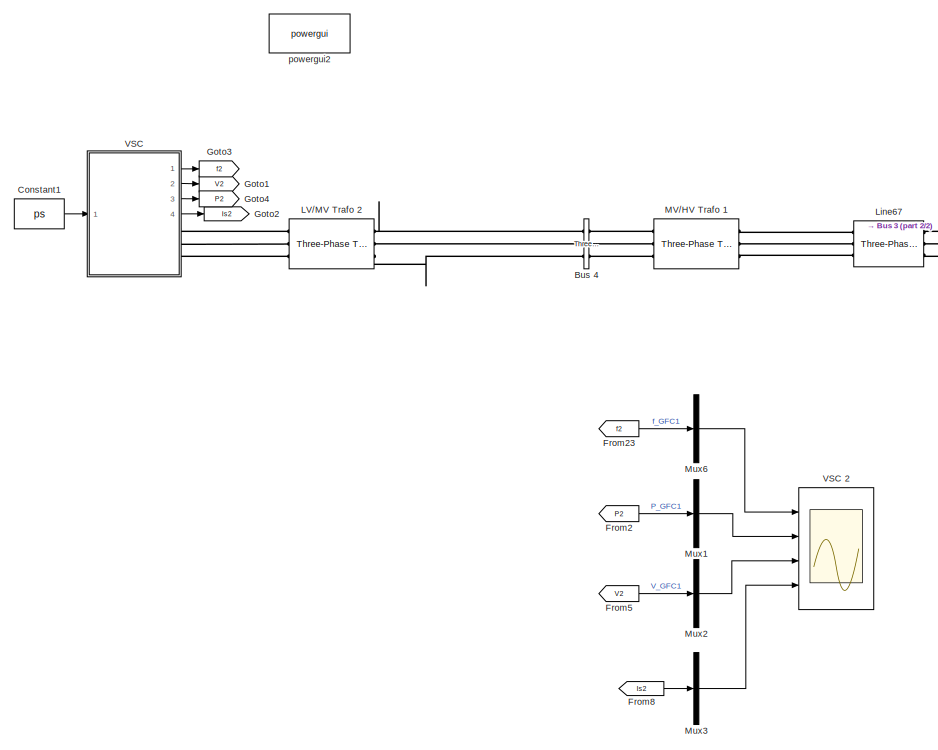
[diagram: root canvas - part 1/2, left side, full height]
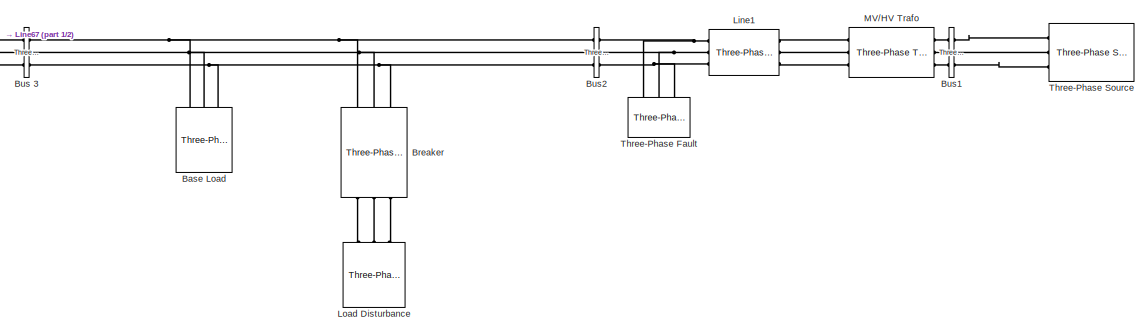
[diagram: root canvas - part 2/2, middle right region]
MODEL slx_628d7ac328af
KIND model
CONFIG AbsTol = auto
CONFIG EnableMultiTasking = off
CONFIG FixedStep = auto
CONFIG MaxStep = auto
CONFIG MinStep = auto
CONFIG RelTol = 1e-3
CONFIG SampleTimeConstraint = Unconstrained
CONFIG Solver = ode23tb
CONFIG SolverName = ode23tb
CONFIG StartTime = 0.0
CONFIG StopTime = Tend
BLOCK [Reference] Base Load   REF=powerlib/Elements/Three-Phase
Parallel RLC Load
  AttributesFormatString = \n
  Ports = [0, 0, 0, 0, 0, 3]
  SourceBlock = powerlib/Elements/Three-Phase\nParallel RLC Load
  SourceProductBaseCode = PS
  SourceProductName = Simscape Electrical
  SourceType = Three-Phase Parallel RLC Load
BLOCK [Reference] Breaker  REF=powerlib/Elements/Three-Phase Breaker
  Ports = [0, 0, 0, 0, 0, 3, 3]
  SourceBlock = powerlib/Elements/Three-Phase Breaker
  SourceProductBaseCode = PS
  SourceProductName = Simscape Electrical
  SourceType = Three-Phase Breaker
BLOCK [Reference] Bus 3  REF=powerlib/Measurements/Three-Phase
V-I Measurement
  Ports = [0, 0, 0, 0, 0, 3, 3]
  SourceBlock = powerlib/Measurements/Three-Phase\nV-I Measurement
  SourceProductBaseCode = PS
  SourceProductName = Simscape Electrical
  SourceType = Three-Phase VI Measurement
BLOCK [Reference] Bus 4  REF=powerlib/Measurements/Three-Phase
V-I Measurement
  Ports = [0, 0, 0, 0, 0, 3, 3]
  SourceBlock = powerlib/Measurements/Three-Phase\nV-I Measurement
  SourceProductBaseCode = PS
  SourceProductName = Simscape Electrical
  SourceType = Three-Phase VI Measurement
BLOCK [Reference] Bus1  REF=powerlib/Measurements/Three-Phase
V-I Measurement
  Ports = [0, 0, 0, 0, 0, 3, 3]
  SourceBlock = powerlib/Measurements/Three-Phase\nV-I Measurement
  SourceProductBaseCode = PS
  SourceProductName = Simscape Electrical
  SourceType = Three-Phase VI Measurement
BLOCK [Reference] Bus2   REF=powerlib/Measurements/Three-Phase
V-I Measurement
  Ports = [0, 0, 0, 0, 0, 3, 3]
  SourceBlock = powerlib/Measurements/Three-Phase\nV-I Measurement
  SourceProductBaseCode = PS
  SourceProductName = Simscape Electrical
  SourceType = Three-Phase VI Measurement
BLOCK [Constant] Constant1
  Value = ps
BLOCK [From] From2
  GotoTag = P2
BLOCK [From] From23
  GotoTag = f2
BLOCK [From] From5
  GotoTag = V2
BLOCK [From] From8
  GotoTag = Is2
BLOCK [Goto] Goto1
  GotoTag = V2
BLOCK [Goto] Goto2
  GotoTag = Is2
BLOCK [Goto] Goto3
  GotoTag = f2
BLOCK [Goto] Goto4
  GotoTag = P2
BLOCK [Reference] LV//MV Trafo 2  REF=powerlib/Elements/Three-Phase
Transformer
(Two Windings)
  AttributesFormatString = \n
  Ports = [0, 0, 0, 0, 0, 3, 3]
  SourceBlock = powerlib/Elements/Three-Phase\nTransformer\n(Two Windings)
  SourceProductBaseCode = PS
  SourceProductName = Simscape Electrical
  SourceType = Three-Phase Transformer (Two Windings)
BLOCK [Reference] Line1  REF=powerlib/Elements/Three-Phase
Series RLC Branch
  AttributesFormatString = \n
  Ports = [0, 0, 0, 0, 0, 3, 3]
  SourceBlock = powerlib/Elements/Three-Phase\nSeries RLC Branch
  SourceProductBaseCode = PS
  SourceProductName = Simscape Electrical
  SourceType = Three-Phase Series RLC Branch
BLOCK [Reference] Line67  REF=powerlib/Elements/Three-Phase
Series RLC Branch
  AttributesFormatString = \n
  Ports = [0, 0, 0, 0, 0, 3, 3]
  SourceBlock = powerlib/Elements/Three-Phase\nSeries RLC Branch
  SourceProductBaseCode = PS
  SourceProductName = Simscape Electrical
  SourceType = Three-Phase Series RLC Branch
BLOCK [Reference] Load Disturbance  REF=powerlib/Elements/Three-Phase
Parallel RLC Load
  AttributesFormatString = \n
  Ports = [0, 0, 0, 0, 0, 3]
  SourceBlock = powerlib/Elements/Three-Phase\nParallel RLC Load
  SourceProductBaseCode = PS
  SourceProductName = Simscape Electrical
  SourceType = Three-Phase Parallel RLC Load
BLOCK [Reference] MV//HV Trafo   REF=powerlib/Elements/Three-Phase
Transformer
(Two Windings)
  AttributesFormatString = \n
  Ports = [0, 0, 0, 0, 0, 3, 3]
  SourceBlock = powerlib/Elements/Three-Phase\nTransformer\n(Two Windings)
  SourceProductBaseCode = PS
  SourceProductName = Simscape Electrical
  SourceType = Three-Phase Transformer (Two Windings)
BLOCK [Reference] MV//HV Trafo 1  REF=powerlib/Elements/Three-Phase
Transformer
(Two Windings)
  AttributesFormatString = \n
  Ports = [0, 0, 0, 0, 0, 3, 3]
  SourceBlock = powerlib/Elements/Three-Phase\nTransformer\n(Two Windings)
  SourceProductBaseCode = PS
  SourceProductName = Simscape Electrical
  SourceType = Three-Phase Transformer (Two Windings)
BLOCK [Mux] Mux1
  DisplayOption = bar
  Inputs = 1
  Ports = [1, 1]
BLOCK [Mux] Mux2
  DisplayOption = bar
  Inputs = 1
  Ports = [1, 1]
BLOCK [Mux] Mux3
  DisplayOption = bar
  Inputs = 1
  Ports = [1, 1]
BLOCK [Mux] Mux6
  DisplayOption = bar
  Inputs = 1
  Ports = [1, 1]
BLOCK [Reference] Three-Phase Fault  REF=powerlib/Elements/Three-Phase Fault
  Ports = [0, 0, 0, 0, 0, 3]
  SourceBlock = powerlib/Elements/Three-Phase Fault
  SourceProductBaseCode = PS
  SourceProductName = Simscape Electrical
  SourceType = Three-Phase Fault
BLOCK [Reference] Three-Phase Source  REF=powerlib/Electrical
Sources/Three-Phase Source
  Ports = [0, 0, 0, 0, 0, 0, 3]
  SourceBlock = powerlib/Electrical\nSources/Three-Phase Source
  SourceProductBaseCode = PS
  SourceProductName = Simscape Electrical
  SourceType = Three-Phase Source
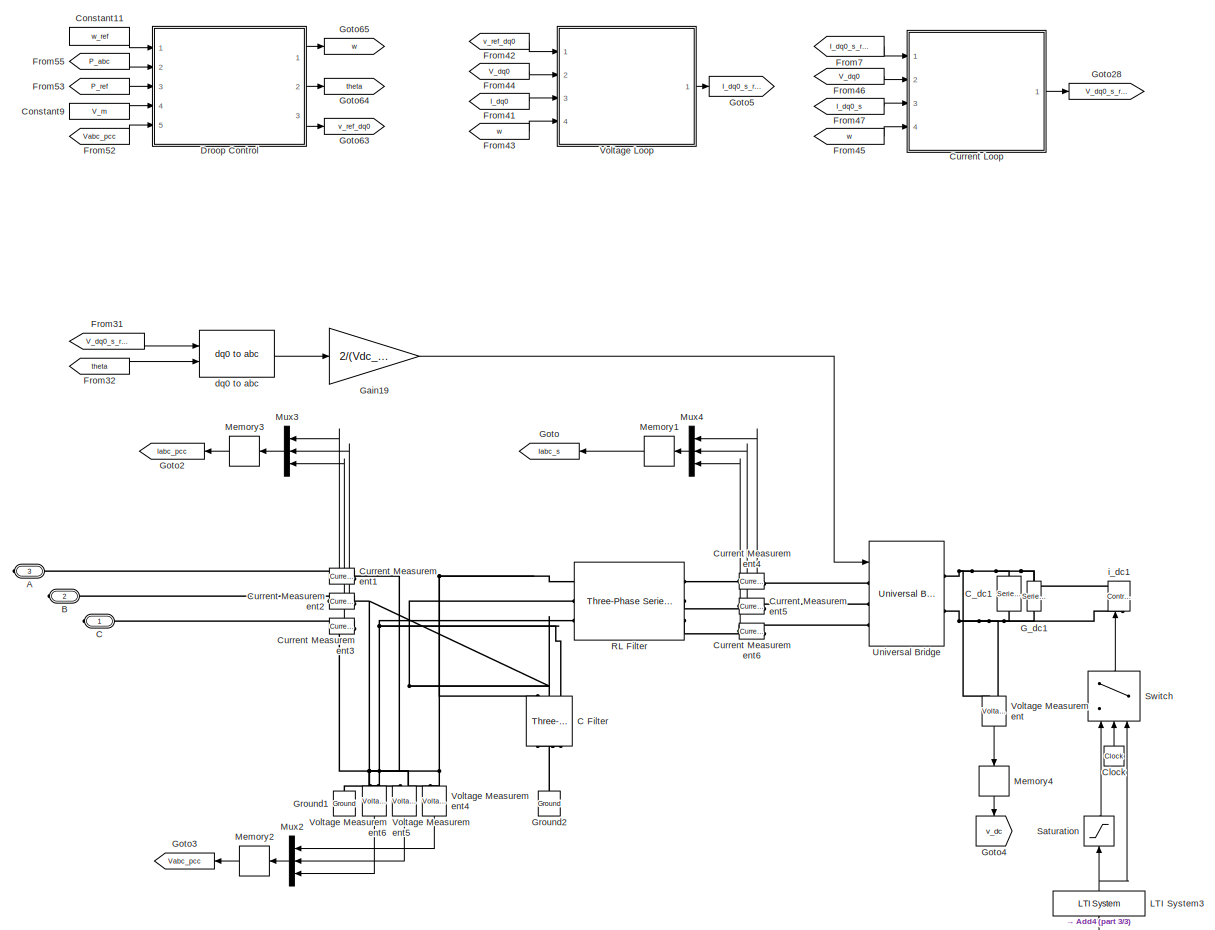
[diagram: VSC - part 1/3, middle right region]
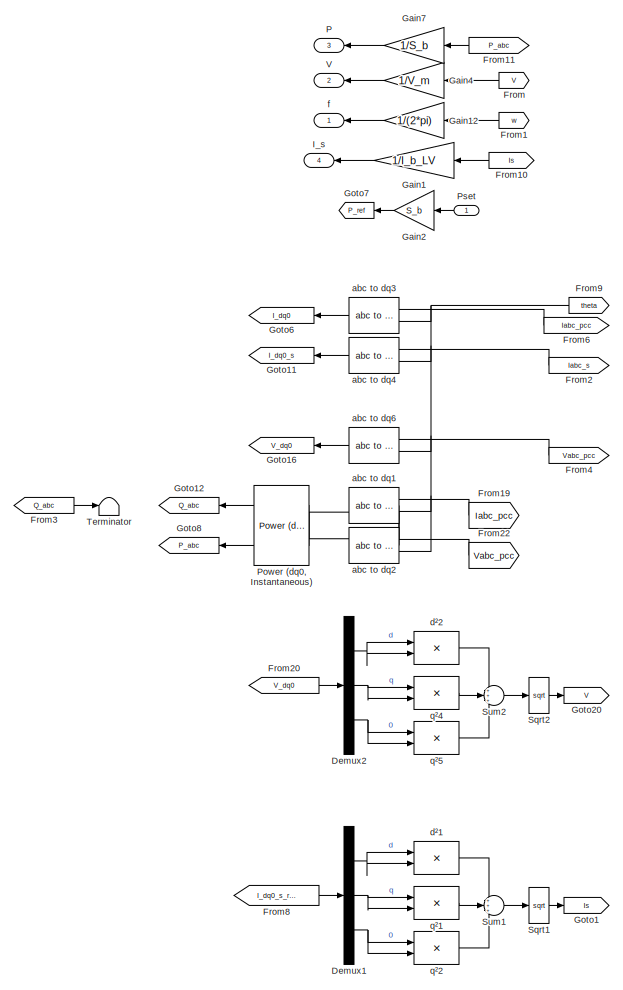
[diagram: VSC - part 2/3, middle left region]
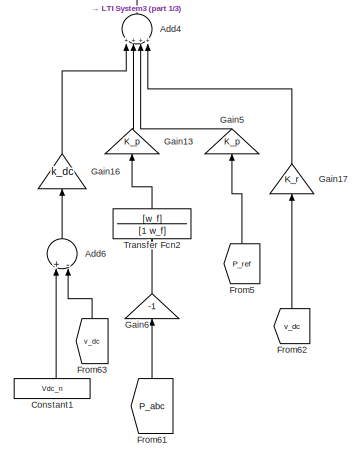
[diagram: VSC - part 3/3, bottom right region]
BLOCK [SubSystem] VSC
  Ports = [1, 4, 0, 0, 0, 0, 3]
  RequestExecContextInheritance = off
BLOCK [Scope] VSC 2 
  Floating = off
  NumInputPorts = 4
  Ports = [4]
  ScopeSpecificationString = Simulink.scopes.TimeScopeBlockCfg('CurrentConfiguration', extmgr.ConfigurationSet(extmgr.Configuration('Core','General UI',true),extmgr.Configuration('Core','Source UI',true),extmgr.Configuration('Sources','WiredSimulink',true,'DataLoggingVariableName','ScopeData1','DataLogging',true,'DataLoggingSaveFormat','StructureWithTime'),extmgr.Configuration('Visuals','Time Domain',true,'SerializedDisplays'...<+3536ch>
BLOCK [PMIOPort] VSC/A
  Port = 3
  Side = Right
BLOCK [Sum] VSC/Add4
  InputSameDT = off
  Inputs = ++++
  OutDataTypeStr = Inherit: Inherit via internal rule
  Ports = [4, 1]
  SaturateOnIntegerOverflow = off
BLOCK [Sum] VSC/Add6
  InputSameDT = off
  Inputs = +-
  OutDataTypeStr = Inherit: Inherit via internal rule
  Ports = [2, 1]
  SaturateOnIntegerOverflow = off
BLOCK [PMIOPort] VSC/B
  Port = 2
  Side = Right
BLOCK [PMIOPort] VSC/C
  Side = Right
BLOCK [Reference] VSC/C Filter  REF=powerlib/Elements/Three-Phase
Parallel RLC Branch
  AttributesFormatString = \n
  Ports = [0, 0, 0, 0, 0, 3, 3]
  SourceBlock = powerlib/Elements/Three-Phase\nParallel RLC Branch
  SourceProductBaseCode = PS
  SourceProductName = Simscape Electrical
  SourceType = Three-Phase Parallel RLC Branch
BLOCK [Reference] VSC/C_dc1  REF=powerlib/Elements/Series RLC Branch
  Ports = [0, 0, 0, 0, 0, 1, 1]
  SourceBlock = powerlib/Elements/Series RLC Branch
  SourceProductBaseCode = PS
  SourceProductName = Simscape Electrical
  SourceType = Series RLC Branch
BLOCK [Clock] VSC/Clock
BLOCK [Constant] VSC/Constant1
  Value = Vdc_n
BLOCK [Constant] VSC/Constant11
  Value = w_ref
BLOCK [Constant] VSC/Constant9
  Value = V_m
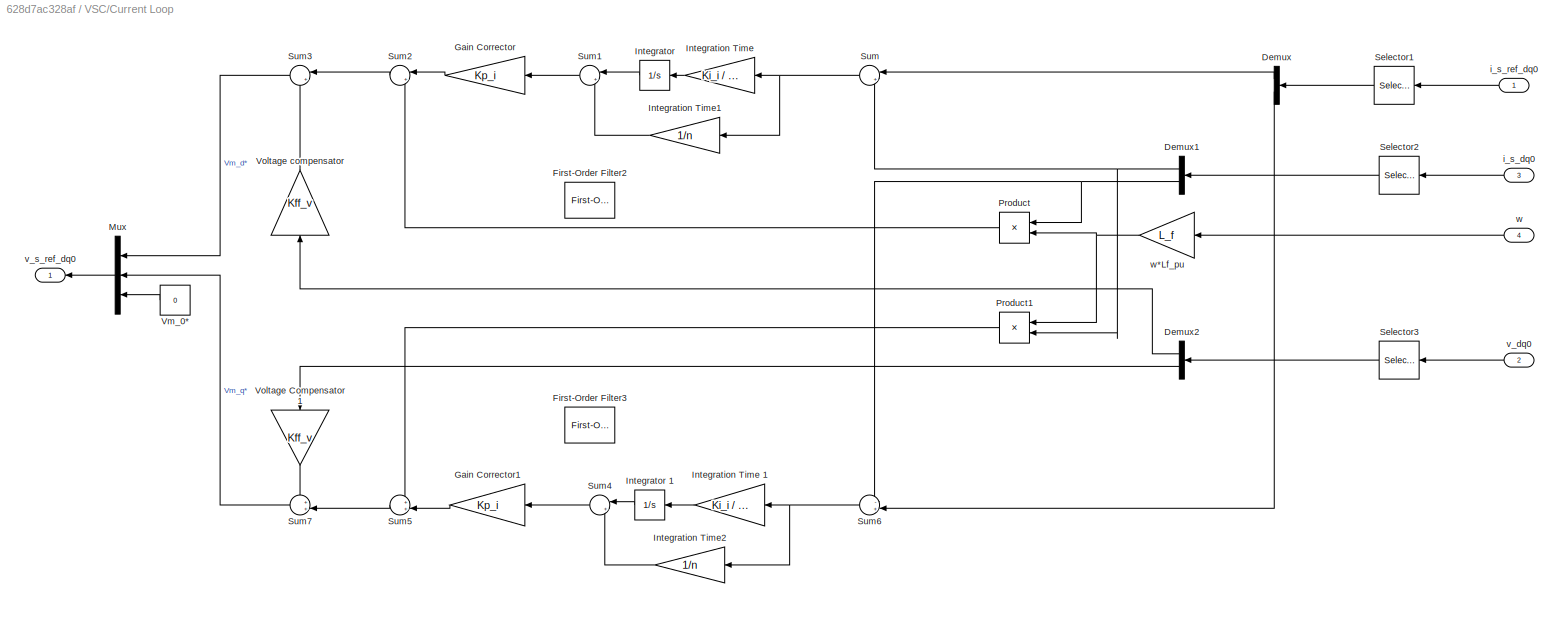
BLOCK [SubSystem] VSC/Current Loop
  Ports = [4, 1]
  RequestExecContextInheritance = off
BLOCK [Demux] VSC/Current Loop/Demux
  DisplayOption = bar
  Outputs = 2
  Ports = [1, 2]
BLOCK [Demux] VSC/Current Loop/Demux1
  DisplayOption = bar
  Outputs = 2
  Ports = [1, 2]
BLOCK [Demux] VSC/Current Loop/Demux2
  DisplayOption = bar
  Outputs = 2
  Ports = [1, 2]
BLOCK [Reference] VSC/Current Loop/First-Order Filter2  REF=powerlib_meascontrol/Filters/First-Order
Filter
  Commented = on
  Ports = [1, 1]
  SourceBlock = powerlib_meascontrol/Filters/First-Order\nFilter
  SourceProductBaseCode = PS
  SourceProductName = Simscape Electrical
  SourceType = First-Order Filter
BLOCK [Reference] VSC/Current Loop/First-Order Filter3  REF=powerlib_meascontrol/Filters/First-Order
Filter
  Commented = on
  Ports = [1, 1]
  SourceBlock = powerlib_meascontrol/Filters/First-Order\nFilter
  SourceProductBaseCode = PS
  SourceProductName = Simscape Electrical
  SourceType = First-Order Filter
BLOCK [Gain] VSC/Current Loop/Gain Corrector
  Gain = Kp_i
  OutDataTypeStr = Inherit: Inherit via internal rule
  ParamDataTypeStr = Inherit: Inherit via internal rule
  SaturateOnIntegerOverflow = off
BLOCK [Gain] VSC/Current Loop/Gain Corrector1
  Gain = Kp_i
  OutDataTypeStr = Inherit: Inherit via internal rule
  ParamDataTypeStr = Inherit: Inherit via internal rule
  SaturateOnIntegerOverflow = off
BLOCK [Gain] VSC/Current Loop/Integration Time
  Gain = Ki_i / Kp_i
  OutDataTypeStr = Inherit: Inherit via internal rule
  ParamDataTypeStr = Inherit: Inherit via internal rule
  SaturateOnIntegerOverflow = off
BLOCK [Gain] VSC/Current Loop/Integration Time 1
  Gain = Ki_i / Kp_i
  OutDataTypeStr = Inherit: Inherit via internal rule
  ParamDataTypeStr = Inherit: Inherit via internal rule
  SaturateOnIntegerOverflow = off
BLOCK [Gain] VSC/Current Loop/Integration Time1
  Gain = 1/n
  OutDataTypeStr = Inherit: Inherit via internal rule
  ParamDataTypeStr = Inherit: Inherit via internal rule
  SaturateOnIntegerOverflow = off
BLOCK [Gain] VSC/Current Loop/Integration Time2
  Gain = 1/n
  OutDataTypeStr = Inherit: Inherit via internal rule
  ParamDataTypeStr = Inherit: Inherit via internal rule
  SaturateOnIntegerOverflow = off
BLOCK [Integrator] VSC/Current Loop/Integrator
  InitialCondition = 0.0001
  Ports = [1, 1]
BLOCK [Integrator] VSC/Current Loop/Integrator 1
  Ports = [1, 1]
BLOCK [Mux] VSC/Current Loop/Mux
  DisplayOption = bar
  Inputs = 3
  Ports = [3, 1]
BLOCK [Product] VSC/Current Loop/Product
  InputSameDT = off
  OutDataTypeStr = Inherit: Inherit via internal rule
  Ports = [2, 1]
  SaturateOnIntegerOverflow = off
BLOCK [Product] VSC/Current Loop/Product1
  InputSameDT = off
  OutDataTypeStr = Inherit: Inherit via internal rule
  Ports = [2, 1]
  SaturateOnIntegerOverflow = off
BLOCK [Selector] VSC/Current Loop/Selector1
  IndexOptions = Index vector (dialog)
  Indices = [1 2]
  InputPortWidth = 3
  OutputSizes = 1
  Ports = [1, 1]
BLOCK [Selector] VSC/Current Loop/Selector2
  IndexOptions = Index vector (dialog)
  Indices = [1 2]
  InputPortWidth = 3
  OutputSizes = 1
  Ports = [1, 1]
BLOCK [Selector] VSC/Current Loop/Selector3
  IndexOptions = Index vector (dialog)
  Indices = [1 2]
  InputPortWidth = 3
  OutputSizes = 1
  Ports = [1, 1]
BLOCK [Sum] VSC/Current Loop/Sum
  IconShape = round
  InputSameDT = off
  Inputs = |+-
  OutDataTypeStr = Inherit: Inherit via internal rule
  Ports = [2, 1]
  SaturateOnIntegerOverflow = off
BLOCK [Sum] VSC/Current Loop/Sum1
  IconShape = round
  InputSameDT = off
  Inputs = |++
  OutDataTypeStr = Inherit: Inherit via internal rule
  Ports = [2, 1]
  SaturateOnIntegerOverflow = off
BLOCK [Sum] VSC/Current Loop/Sum2
  IconShape = round
  InputSameDT = off
  Inputs = |+-
  OutDataTypeStr = Inherit: Inherit via internal rule
  Ports = [2, 1]
  SaturateOnIntegerOverflow = off
BLOCK [Sum] VSC/Current Loop/Sum3
  IconShape = round
  InputSameDT = off
  Inputs = |++
  OutDataTypeStr = Inherit: Inherit via internal rule
  Ports = [2, 1]
  SaturateOnIntegerOverflow = off
BLOCK [Sum] VSC/Current Loop/Sum4
  IconShape = round
  InputSameDT = off
  Inputs = |++
  OutDataTypeStr = Inherit: Inherit via internal rule
  Ports = [2, 1]
  SaturateOnIntegerOverflow = off
BLOCK [Sum] VSC/Current Loop/Sum5
  IconShape = round
  InputSameDT = off
  Inputs = ++|
  OutDataTypeStr = Inherit: Inherit via internal rule
  Ports = [2, 1]
  SaturateOnIntegerOverflow = off
BLOCK [Sum] VSC/Current Loop/Sum6
  IconShape = round
  InputSameDT = off
  Inputs = -+|
  OutDataTypeStr = Inherit: Inherit via internal rule
  Ports = [2, 1]
  SaturateOnIntegerOverflow = off
BLOCK [Sum] VSC/Current Loop/Sum7
  IconShape = round
  InputSameDT = off
  Inputs = ++|
  OutDataTypeStr = Inherit: Inherit via internal rule
  Ports = [2, 1]
  SaturateOnIntegerOverflow = off
BLOCK [Constant] VSC/Current Loop/Vm_0*
  Value = 0
BLOCK [Gain] VSC/Current Loop/Voltage Compensator 1
  Gain = Kff_v
  OutDataTypeStr = Inherit: Inherit via internal rule
  ParamDataTypeStr = Inherit: Inherit via internal rule
  SaturateOnIntegerOverflow = off
BLOCK [Gain] VSC/Current Loop/Voltage compensator
  Gain = Kff_v
  OutDataTypeStr = Inherit: Inherit via internal rule
  ParamDataTypeStr = Inherit: Inherit via internal rule
  SaturateOnIntegerOverflow = off
BLOCK [Inport] VSC/Current Loop/i_s_dq0
  IconDisplay = Port number
  Port = 3
BLOCK [Inport] VSC/Current Loop/i_s_ref_dq0
  IconDisplay = Port number
BLOCK [Inport] VSC/Current Loop/v_dq0
  IconDisplay = Port number
  Port = 2
BLOCK [Outport] VSC/Current Loop/v_s_ref_dq0
  IconDisplay = Port number
  VectorParamsAs1DForOutWhenUnconnected = off
BLOCK [Inport] VSC/Current Loop/w
  IconDisplay = Port number
  Port = 4
BLOCK [Gain] VSC/Current Loop/w*Lf_pu
  Gain = L_f
  OutDataTypeStr = Inherit: Inherit via internal rule
  ParamDataTypeStr = Inherit: Inherit via internal rule
  SaturateOnIntegerOverflow = off
BLOCK [Reference] VSC/Current Measurement1  REF=powerlib/Measurements/Current Measurement
  Ports = [0, 1, 0, 0, 0, 1, 1]
  SourceBlock = powerlib/Measurements/Current Measurement
  SourceProductBaseCode = PS
  SourceProductName = Simscape Electrical
  SourceType = Current Measurement
  UserDataPersistent = on
BLOCK [Reference] VSC/Current Measurement2  REF=powerlib/Measurements/Current Measurement
  Ports = [0, 1, 0, 0, 0, 1, 1]
  SourceBlock = powerlib/Measurements/Current Measurement
  SourceProductBaseCode = PS
  SourceProductName = Simscape Electrical
  SourceType = Current Measurement
  UserDataPersistent = on
BLOCK [Reference] VSC/Current Measurement3  REF=powerlib/Measurements/Current Measurement
  Ports = [0, 1, 0, 0, 0, 1, 1]
  SourceBlock = powerlib/Measurements/Current Measurement
  SourceProductBaseCode = PS
  SourceProductName = Simscape Electrical
  SourceType = Current Measurement
  UserDataPersistent = on
BLOCK [Reference] VSC/Current Measurement4  REF=powerlib/Measurements/Current Measurement
  Ports = [0, 1, 0, 0, 0, 1, 1]
  SourceBlock = powerlib/Measurements/Current Measurement
  SourceProductBaseCode = PS
  SourceProductName = Simscape Electrical
  SourceType = Current Measurement
  UserDataPersistent = on
BLOCK [Reference] VSC/Current Measurement5  REF=powerlib/Measurements/Current Measurement
  Ports = [0, 1, 0, 0, 0, 1, 1]
  SourceBlock = powerlib/Measurements/Current Measurement
  SourceProductBaseCode = PS
  SourceProductName = Simscape Electrical
  SourceType = Current Measurement
  UserDataPersistent = on
BLOCK [Reference] VSC/Current Measurement6  REF=powerlib/Measurements/Current Measurement
  Ports = [0, 1, 0, 0, 0, 1, 1]
  SourceBlock = powerlib/Measurements/Current Measurement
  SourceProductBaseCode = PS
  SourceProductName = Simscape Electrical
  SourceType = Current Measurement
  UserDataPersistent = on
BLOCK [Demux] VSC/Demux1
  DisplayOption = bar
  Outputs = 3
  Ports = [1, 3]
BLOCK [Demux] VSC/Demux2
  DisplayOption = bar
  Outputs = 3
  Ports = [1, 3]
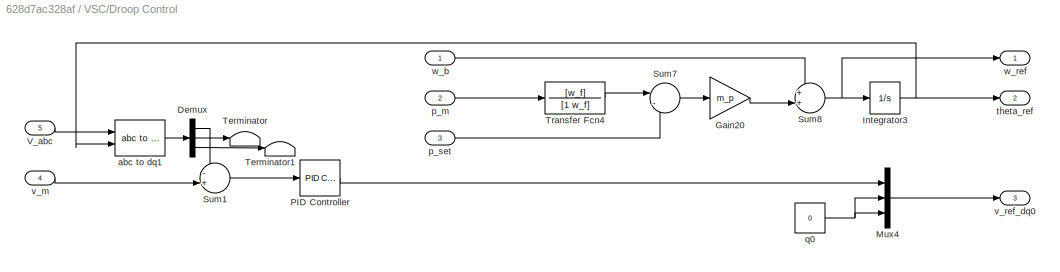
BLOCK [SubSystem] VSC/Droop Control
  Ports = [5, 3]
  RequestExecContextInheritance = off
BLOCK [Demux] VSC/Droop Control/Demux
  DisplayOption = bar
  Outputs = 3
  Ports = [1, 3]
BLOCK [Gain] VSC/Droop Control/Gain20
  Gain = m_p
  OutDataTypeStr = Inherit: Inherit via internal rule
  ParamDataTypeStr = Inherit: Inherit via internal rule
  SaturateOnIntegerOverflow = off
BLOCK [Integrator] VSC/Droop Control/Integrator3
  Ports = [1, 1]
BLOCK [Mux] VSC/Droop Control/Mux4
  DisplayOption = bar
  Inputs = 3
  Ports = [3, 1]
BLOCK [Reference] VSC/Droop Control/PID Controller  REF=simulink/Continuous/PID Controller
  Ports = [1, 1]
  SourceBlock = simulink/Continuous/PID Controller
  SourceProductBaseCode = SL
  SourceProductName = Simulink
  SourceType = PID 1dof
BLOCK [Sum] VSC/Droop Control/Sum1
  IconShape = round
  InputSameDT = off
  Inputs = -+|
  OutDataTypeStr = Inherit: Inherit via internal rule
  Ports = [2, 1]
  SaturateOnIntegerOverflow = off
BLOCK [Sum] VSC/Droop Control/Sum7
  IconShape = round
  InputSameDT = off
  Inputs = |-+
  OutDataTypeStr = Inherit: Inherit via internal rule
  Ports = [2, 1]
  SaturateOnIntegerOverflow = off
BLOCK [Sum] VSC/Droop Control/Sum8
  IconShape = round
  InputSameDT = off
  Inputs = ++|
  OutDataTypeStr = Inherit: Inherit via internal rule
  Ports = [2, 1]
  SaturateOnIntegerOverflow = off
BLOCK [Terminator] VSC/Droop Control/Terminator
BLOCK [Terminator] VSC/Droop Control/Terminator1
BLOCK [TransferFcn] VSC/Droop Control/Transfer Fcn4
  Denominator = [1 w_f]
  Numerator = [w_f]
BLOCK [Inport] VSC/Droop Control/V_abc
  IconDisplay = Port number
  Port = 5
BLOCK [Reference] VSC/Droop Control/abc to dq1  REF=powerlib_meascontrol/Transformations/abc to dq0
  Ports = [2, 1]
  SourceBlock = powerlib_meascontrol/Transformations/abc to dq0
  SourceProductBaseCode = PS
  SourceProductName = Simscape Electrical
  SourceType = abc to dq0 Transformation
BLOCK [Inport] VSC/Droop Control/p_m
  IconDisplay = Port number
  Port = 2
BLOCK [Inport] VSC/Droop Control/p_set
  IconDisplay = Port number
  Port = 3
BLOCK [Constant] VSC/Droop Control/q0
  Value = 0
BLOCK [Outport] VSC/Droop Control/theta_ref
  IconDisplay = Port number
  Port = 2
  VectorParamsAs1DForOutWhenUnconnected = off
BLOCK [Inport] VSC/Droop Control/v_m
  IconDisplay = Port number
  Port = 4
BLOCK [Outport] VSC/Droop Control/v_ref_dq0
  IconDisplay = Port number
  Port = 3
  VectorParamsAs1DForOutWhenUnconnected = off
BLOCK [Inport] VSC/Droop Control/w_b
  IconDisplay = Port number
BLOCK [Outport] VSC/Droop Control/w_ref
  IconDisplay = Port number
  VectorParamsAs1DForOutWhenUnconnected = off
BLOCK [From] VSC/From
  GotoTag = V
BLOCK [From] VSC/From1
  GotoTag = w
BLOCK [From] VSC/From10
  GotoTag = Is
BLOCK [From] VSC/From11
  GotoTag = P_abc
BLOCK [From] VSC/From19
  GotoTag = Iabc_pcc
BLOCK [From] VSC/From2
  GotoTag = Iabc_s
BLOCK [From] VSC/From20
  GotoTag = V_dq0
BLOCK [From] VSC/From22
  GotoTag = Vabc_pcc
BLOCK [From] VSC/From3
  GotoTag = Q_abc
BLOCK [From] VSC/From31
  GotoTag = V_dq0_s_ref
BLOCK [From] VSC/From32
  GotoTag = theta
BLOCK [From] VSC/From4
  GotoTag = Vabc_pcc
BLOCK [From] VSC/From41
  GotoTag = I_dq0
BLOCK [From] VSC/From42
  GotoTag = v_ref_dq0
BLOCK [From] VSC/From43
  GotoTag = w
BLOCK [From] VSC/From44
  GotoTag = V_dq0
BLOCK [From] VSC/From45
  GotoTag = w
BLOCK [From] VSC/From46
  GotoTag = V_dq0
BLOCK [From] VSC/From47
  GotoTag = I_dq0_s
BLOCK [From] VSC/From5
  GotoTag = P_ref
BLOCK [From] VSC/From52
  GotoTag = Vabc_pcc
BLOCK [From] VSC/From53
  GotoTag = P_ref
BLOCK [From] VSC/From55
  GotoTag = P_abc
BLOCK [From] VSC/From6
  GotoTag = Iabc_pcc
BLOCK [From] VSC/From61
  GotoTag = P_abc
BLOCK [From] VSC/From62
  GotoTag = v_dc
BLOCK [From] VSC/From63
  GotoTag = v_dc
BLOCK [From] VSC/From7
  GotoTag = I_dq0_s_ref
BLOCK [From] VSC/From8
  GotoTag = I_dq0_s_ref
BLOCK [From] VSC/From9
  GotoTag = theta
BLOCK [Reference] VSC/G_dc1  REF=powerlib/Elements/Series RLC Branch
  Ports = [0, 0, 0, 0, 0, 1, 1]
  SourceBlock = powerlib/Elements/Series RLC Branch
  SourceProductBaseCode = PS
  SourceProductName = Simscape Electrical
  SourceType = Series RLC Branch
BLOCK [Gain] VSC/Gain1
  Gain = 1/I_b_LV
  OutDataTypeStr = Inherit: Inherit via internal rule
  ParamDataTypeStr = Inherit: Inherit via internal rule
  SaturateOnIntegerOverflow = off
BLOCK [Gain] VSC/Gain12
  Gain = 1/(2*pi)
  OutDataTypeStr = Inherit: Inherit via internal rule
  ParamDataTypeStr = Inherit: Inherit via internal rule
  SaturateOnIntegerOverflow = off
BLOCK [Gain] VSC/Gain13
  Gain = K_p
  OutDataTypeStr = Inherit: Inherit via internal rule
  ParamDataTypeStr = Inherit: Inherit via internal rule
  SaturateOnIntegerOverflow = off
BLOCK [Gain] VSC/Gain16
  Gain = k_dc
  OutDataTypeStr = Inherit: Inherit via internal rule
  ParamDataTypeStr = Inherit: Inherit via internal rule
  SaturateOnIntegerOverflow = off
BLOCK [Gain] VSC/Gain17
  Gain = K_r
  OutDataTypeStr = Inherit: Inherit via internal rule
  ParamDataTypeStr = Inherit: Inherit via internal rule
  SaturateOnIntegerOverflow = off
BLOCK [Gain] VSC/Gain19
  Gain = 2/(Vdc_n)
  OutDataTypeStr = Inherit: Inherit via internal rule
  ParamDataTypeStr = Inherit: Inherit via internal rule
  SaturateOnIntegerOverflow = off
BLOCK [Gain] VSC/Gain2
  Gain = S_b
  OutDataTypeStr = Inherit: Inherit via internal rule
  ParamDataTypeStr = Inherit: Inherit via internal rule
  SaturateOnIntegerOverflow = off
BLOCK [Gain] VSC/Gain4
  Gain = 1/V_m
  OutDataTypeStr = Inherit: Inherit via internal rule
  ParamDataTypeStr = Inherit: Inherit via internal rule
  SaturateOnIntegerOverflow = off
BLOCK [Gain] VSC/Gain5
  Gain = K_p
  OutDataTypeStr = Inherit: Inherit via internal rule
  ParamDataTypeStr = Inherit: Inherit via internal rule
  SaturateOnIntegerOverflow = off
BLOCK [Gain] VSC/Gain6
  Gain = -1
  OutDataTypeStr = Inherit: Inherit via internal rule
  ParamDataTypeStr = Inherit: Inherit via internal rule
  SaturateOnIntegerOverflow = off
BLOCK [Gain] VSC/Gain7
  Gain = 1/S_b
  OutDataTypeStr = Inherit: Inherit via internal rule
  ParamDataTypeStr = Inherit: Inherit via internal rule
  SaturateOnIntegerOverflow = off
BLOCK [Goto] VSC/Goto
  GotoTag = Iabc_s
BLOCK [Goto] VSC/Goto1
  GotoTag = Is
BLOCK [Goto] VSC/Goto11
  GotoTag = I_dq0_s
BLOCK [Goto] VSC/Goto12
  GotoTag = Q_abc
BLOCK [Goto] VSC/Goto16
  GotoTag = V_dq0
BLOCK [Goto] VSC/Goto2
  GotoTag = Iabc_pcc
BLOCK [Goto] VSC/Goto20
  GotoTag = V
BLOCK [Goto] VSC/Goto28
  GotoTag = V_dq0_s_ref
BLOCK [Goto] VSC/Goto3
  GotoTag = Vabc_pcc
BLOCK [Goto] VSC/Goto4
  GotoTag = v_dc
BLOCK [Goto] VSC/Goto5
  GotoTag = I_dq0_s_ref
BLOCK [Goto] VSC/Goto6
  GotoTag = I_dq0
BLOCK [Goto] VSC/Goto63
  GotoTag = v_ref_dq0
BLOCK [Goto] VSC/Goto64
  GotoTag = theta
BLOCK [Goto] VSC/Goto65
  GotoTag = w
BLOCK [Goto] VSC/Goto7
  GotoTag = P_ref
BLOCK [Goto] VSC/Goto8
  GotoTag = P_abc
BLOCK [Reference] VSC/Ground1  REF=powerlib/Elements/Ground
  Ports = [0, 0, 0, 0, 0, 1]
  SourceBlock = powerlib/Elements/Ground
  SourceProductBaseCode = PS
  SourceProductName = Simscape Electrical
  SourceType = Ground
BLOCK [Reference] VSC/Ground2  REF=powerlib/Elements/Ground
  Ports = [0, 0, 0, 0, 0, 1]
  SourceBlock = powerlib/Elements/Ground
  SourceProductBaseCode = PS
  SourceProductName = Simscape Electrical
  SourceType = Ground
BLOCK [Outport] VSC/I_s
  IconDisplay = Port number
  Port = 4
  VectorParamsAs1DForOutWhenUnconnected = off
BLOCK [Reference] VSC/LTI System3  REF=cstblocks/LTI System
  Ports = [1, 1]
  SourceBlock = cstblocks/LTI System
  SourceProductBaseCode = CT
  SourceProductName = Control System Toolbox
  SourceType = LTI Block
BLOCK [Memory] VSC/Memory1
BLOCK [Memory] VSC/Memory2
BLOCK [Memory] VSC/Memory3
BLOCK [Memory] VSC/Memory4
BLOCK [Mux] VSC/Mux2
  DisplayOption = bar
  Inputs = 3
  Ports = [3, 1]
BLOCK [Mux] VSC/Mux3
  DisplayOption = bar
  Inputs = 3
  Ports = [3, 1]
BLOCK [Mux] VSC/Mux4
  DisplayOption = bar
  Inputs = 3
  Ports = [3, 1]
BLOCK [Outport] VSC/P
  IconDisplay = Port number
  Port = 3
  VectorParamsAs1DForOutWhenUnconnected = off
BLOCK [Reference] VSC/Power (dq0, Instantaneous)  REF=powerlib_meascontrol/Measurements/Power
(dq0, Instantaneous)
  Ports = [2, 2]
  SourceBlock = powerlib_meascontrol/Measurements/Power\n(dq0, Instantaneous)
  SourceProductBaseCode = PS
  SourceProductName = Simscape Electrical
  SourceType = Power (dq0, Instantaneous)
BLOCK [Inport] VSC/Pset
  IconDisplay = Port number
BLOCK [Reference] VSC/RL Filter  REF=powerlib/Elements/Three-Phase
Series RLC Branch
  AttributesFormatString = \n
  Ports = [0, 0, 0, 0, 0, 3, 3]
  SourceBlock = powerlib/Elements/Three-Phase\nSeries RLC Branch
  SourceProductBaseCode = PS
  SourceProductName = Simscape Electrical
  SourceType = Three-Phase Series RLC Branch
BLOCK [Saturate] VSC/Saturation
  InputPortMap = u0
  LowerLimit = i_ll
  Ports = [1, 1]
  UpperLimit = i_ul
BLOCK [Sqrt] VSC/Sqrt1
BLOCK [Sqrt] VSC/Sqrt2
BLOCK [Sum] VSC/Sum1
  IconShape = round
  Inputs = +++
  Ports = [3, 1]
BLOCK [Sum] VSC/Sum2
  IconShape = round
  Inputs = +++
  Ports = [3, 1]
BLOCK [Switch] VSC/Switch
  Criteria = u2 > Threshold
  InputSameDT = off
  SaturateOnIntegerOverflow = off
  Threshold = T_en
BLOCK [Terminator] VSC/Terminator
BLOCK [TransferFcn] VSC/Transfer Fcn2
  Denominator = [1 w_f]
  Numerator = [w_f]
BLOCK [Reference] VSC/Universal Bridge  REF=powerlib/Power
Electronics/Universal Bridge
  Ports = [1, 0, 0, 0, 0, 3, 2]
  SourceBlock = powerlib/Power\nElectronics/Universal Bridge
  SourceProductBaseCode = PS
  SourceProductName = Simscape Electrical
  SourceType = Universal Bridge
BLOCK [Outport] VSC/V
  IconDisplay = Port number
  Port = 2
  VectorParamsAs1DForOutWhenUnconnected = off
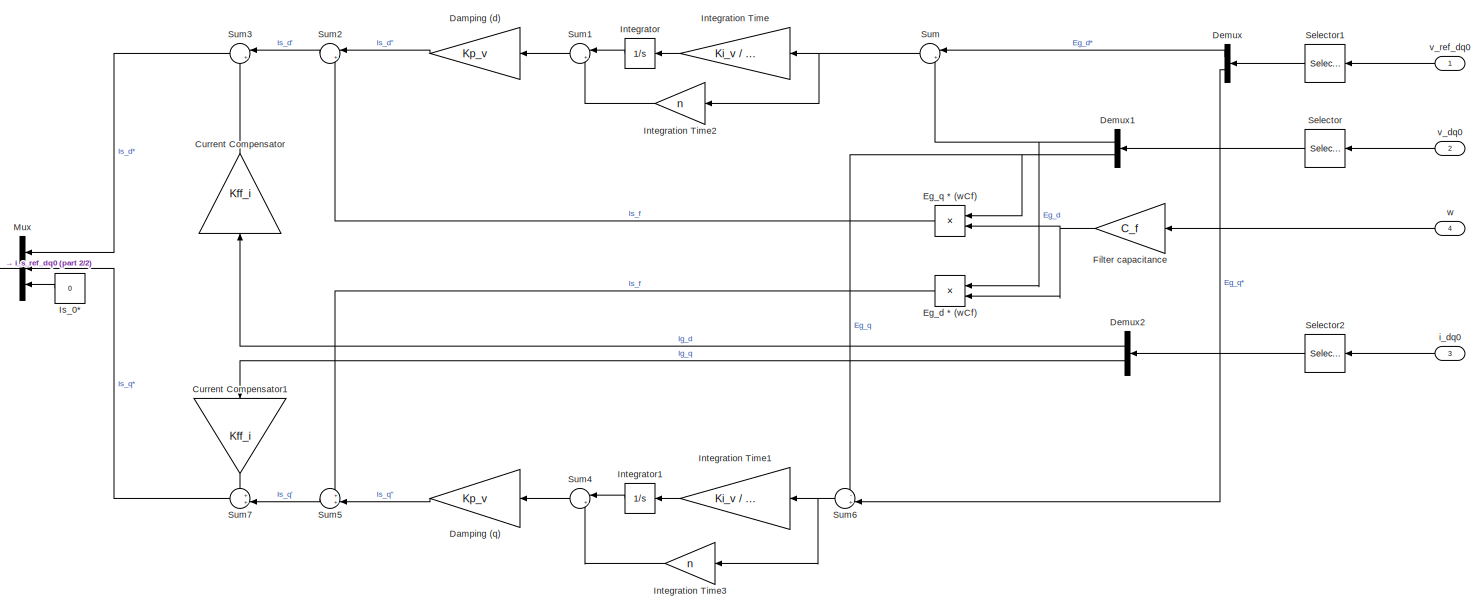
[diagram: VSC/Voltage Loop - part 1/2, most of the canvas]
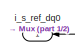
[diagram: VSC/Voltage Loop - part 2/2, middle left region]
BLOCK [SubSystem] VSC/Voltage Loop
  Ports = [4, 1]
  RequestExecContextInheritance = off
BLOCK [Gain] VSC/Voltage Loop/Current Compensator
  Gain = Kff_i
  OutDataTypeStr = Inherit: Inherit via internal rule
  ParamDataTypeStr = Inherit: Inherit via internal rule
  SaturateOnIntegerOverflow = off
BLOCK [Gain] VSC/Voltage Loop/Current Compensator1
  Gain = Kff_i
  OutDataTypeStr = Inherit: Inherit via internal rule
  ParamDataTypeStr = Inherit: Inherit via internal rule
  SaturateOnIntegerOverflow = off
BLOCK [Gain] VSC/Voltage Loop/Damping (d)
  Gain = Kp_v
  OutDataTypeStr = Inherit: Inherit via internal rule
  ParamDataTypeStr = Inherit: Inherit via internal rule
  SaturateOnIntegerOverflow = off
BLOCK [Gain] VSC/Voltage Loop/Damping (q)
  Gain = Kp_v
  OutDataTypeStr = Inherit: Inherit via internal rule
  ParamDataTypeStr = Inherit: Inherit via internal rule
  SaturateOnIntegerOverflow = off
BLOCK [Demux] VSC/Voltage Loop/Demux
  DisplayOption = bar
  Outputs = 2
  Ports = [1, 2]
BLOCK [Demux] VSC/Voltage Loop/Demux1
  DisplayOption = bar
  Outputs = 2
  Ports = [1, 2]
BLOCK [Demux] VSC/Voltage Loop/Demux2
  DisplayOption = bar
  Outputs = 2
  Ports = [1, 2]
BLOCK [Product] VSC/Voltage Loop/Eg_d * (wCf)
  InputSameDT = off
  OutDataTypeStr = Inherit: Inherit via internal rule
  Ports = [2, 1]
  SaturateOnIntegerOverflow = off
BLOCK [Product] VSC/Voltage Loop/Eg_q * (wCf) 
  InputSameDT = off
  OutDataTypeStr = Inherit: Inherit via internal rule
  Ports = [2, 1]
  SaturateOnIntegerOverflow = off
BLOCK [Gain] VSC/Voltage Loop/Filter capacitance
  Gain = C_f
  OutDataTypeStr = Inherit: Inherit via internal rule
  ParamDataTypeStr = Inherit: Inherit via internal rule
  SaturateOnIntegerOverflow = off
BLOCK [Gain] VSC/Voltage Loop/Integration Time
  Gain = Ki_v / Kp_v
  OutDataTypeStr = Inherit: Inherit via internal rule
  ParamDataTypeStr = Inherit: Inherit via internal rule
  SaturateOnIntegerOverflow = off
BLOCK [Gain] VSC/Voltage Loop/Integration Time1
  Gain = Ki_v / Kp_v
  OutDataTypeStr = Inherit: Inherit via internal rule
  ParamDataTypeStr = Inherit: Inherit via internal rule
  SaturateOnIntegerOverflow = off
BLOCK [Gain] VSC/Voltage Loop/Integration Time2
  Gain = n
  OutDataTypeStr = Inherit: Inherit via internal rule
  ParamDataTypeStr = Inherit: Inherit via internal rule
  SaturateOnIntegerOverflow = off
BLOCK [Gain] VSC/Voltage Loop/Integration Time3
  Gain = n
  OutDataTypeStr = Inherit: Inherit via internal rule
  ParamDataTypeStr = Inherit: Inherit via internal rule
  SaturateOnIntegerOverflow = off
BLOCK [Integrator] VSC/Voltage Loop/Integrator
  Ports = [1, 1]
BLOCK [Integrator] VSC/Voltage Loop/Integrator1
  Ports = [1, 1]
BLOCK [Constant] VSC/Voltage Loop/Is_0*
  Value = 0
BLOCK [Mux] VSC/Voltage Loop/Mux
  DisplayOption = bar
  Inputs = 3
  Ports = [3, 1]
BLOCK [Selector] VSC/Voltage Loop/Selector
  IndexOptions = Index vector (dialog)
  Indices = [1 2]
  InputPortWidth = 3
  OutputSizes = 1
  Ports = [1, 1]
BLOCK [Selector] VSC/Voltage Loop/Selector1
  IndexOptions = Index vector (dialog)
  Indices = [1 2]
  InputPortWidth = 3
  OutputSizes = 1
  Ports = [1, 1]
BLOCK [Selector] VSC/Voltage Loop/Selector2
  IndexOptions = Index vector (dialog)
  Indices = [1 2]
  InputPortWidth = 3
  OutputSizes = 1
  Ports = [1, 1]
BLOCK [Sum] VSC/Voltage Loop/Sum
  IconShape = round
  InputSameDT = off
  Inputs = |+-
  OutDataTypeStr = Inherit: Inherit via internal rule
  Ports = [2, 1]
  SaturateOnIntegerOverflow = off
BLOCK [Sum] VSC/Voltage Loop/Sum1
  IconShape = round
  InputSameDT = off
  Inputs = |++
  OutDataTypeStr = Inherit: Inherit via internal rule
  Ports = [2, 1]
  SaturateOnIntegerOverflow = off
BLOCK [Sum] VSC/Voltage Loop/Sum2
  IconShape = round
  InputSameDT = off
  Inputs = |+-
  OutDataTypeStr = Inherit: Inherit via internal rule
  Ports = [2, 1]
  SaturateOnIntegerOverflow = off
BLOCK [Sum] VSC/Voltage Loop/Sum3
  IconShape = round
  InputSameDT = off
  Inputs = |++
  OutDataTypeStr = Inherit: Inherit via internal rule
  Ports = [2, 1]
  SaturateOnIntegerOverflow = off
BLOCK [Sum] VSC/Voltage Loop/Sum4
  IconShape = round
  InputSameDT = off
  Inputs = |++
  OutDataTypeStr = Inherit: Inherit via internal rule
  Ports = [2, 1]
  SaturateOnIntegerOverflow = off
BLOCK [Sum] VSC/Voltage Loop/Sum5
  IconShape = round
  InputSameDT = off
  Inputs = ++|
  OutDataTypeStr = Inherit: Inherit via internal rule
  Ports = [2, 1]
  SaturateOnIntegerOverflow = off
BLOCK [Sum] VSC/Voltage Loop/Sum6
  IconShape = round
  InputSameDT = off
  Inputs = -+|
  OutDataTypeStr = Inherit: Inherit via internal rule
  Ports = [2, 1]
  SaturateOnIntegerOverflow = off
BLOCK [Sum] VSC/Voltage Loop/Sum7
  IconShape = round
  InputSameDT = off
  Inputs = ++|
  OutDataTypeStr = Inherit: Inherit via internal rule
  Ports = [2, 1]
  SaturateOnIntegerOverflow = off
BLOCK [Inport] VSC/Voltage Loop/i_dq0
  IconDisplay = Port number
  Port = 3
BLOCK [Outport] VSC/Voltage Loop/i_s_ref_dq0
  IconDisplay = Port number
  VectorParamsAs1DForOutWhenUnconnected = off
BLOCK [Inport] VSC/Voltage Loop/v_dq0
  IconDisplay = Port number
  Port = 2
BLOCK [Inport] VSC/Voltage Loop/v_ref_dq0
  IconDisplay = Port number
BLOCK [Inport] VSC/Voltage Loop/w
  IconDisplay = Port number
  Port = 4
BLOCK [Reference] VSC/Voltage Measurement  REF=powerlib/Measurements/Voltage Measurement
  Ports = [0, 1, 0, 0, 0, 2]
  SourceBlock = powerlib/Measurements/Voltage Measurement
  SourceProductBaseCode = PS
  SourceProductName = Simscape Electrical
  SourceType = Voltage Measurement
  UserDataPersistent = on
BLOCK [Reference] VSC/Voltage Measurement4  REF=powerlib/Measurements/Voltage Measurement
  Ports = [0, 1, 0, 0, 0, 2]
  SourceBlock = powerlib/Measurements/Voltage Measurement
  SourceProductBaseCode = PS
  SourceProductName = Simscape Electrical
  SourceType = Voltage Measurement
  UserDataPersistent = on
BLOCK [Reference] VSC/Voltage Measurement5  REF=powerlib/Measurements/Voltage Measurement
  Ports = [0, 1, 0, 0, 0, 2]
  SourceBlock = powerlib/Measurements/Voltage Measurement
  SourceProductBaseCode = PS
  SourceProductName = Simscape Electrical
  SourceType = Voltage Measurement
  UserDataPersistent = on
BLOCK [Reference] VSC/Voltage Measurement6  REF=powerlib/Measurements/Voltage Measurement
  Ports = [0, 1, 0, 0, 0, 2]
  SourceBlock = powerlib/Measurements/Voltage Measurement
  SourceProductBaseCode = PS
  SourceProductName = Simscape Electrical
  SourceType = Voltage Measurement
  UserDataPersistent = on
BLOCK [Reference] VSC/abc to dq1  REF=powerlib_meascontrol/Transformations/abc to dq0
  Ports = [2, 1]
  SourceBlock = powerlib_meascontrol/Transformations/abc to dq0
  SourceProductBaseCode = PS
  SourceProductName = Simscape Electrical
  SourceType = abc to dq0 Transformation
BLOCK [Reference] VSC/abc to dq2  REF=powerlib_meascontrol/Transformations/abc to dq0
  Ports = [2, 1]
  SourceBlock = powerlib_meascontrol/Transformations/abc to dq0
  SourceProductBaseCode = PS
  SourceProductName = Simscape Electrical
  SourceType = abc to dq0 Transformation
BLOCK [Reference] VSC/abc to dq3  REF=powerlib_meascontrol/Transformations/abc to dq0
  Ports = [2, 1]
  SourceBlock = powerlib_meascontrol/Transformations/abc to dq0
  SourceProductBaseCode = PS
  SourceProductName = Simscape Electrical
  SourceType = abc to dq0 Transformation
BLOCK [Reference] VSC/abc to dq4  REF=powerlib_meascontrol/Transformations/abc to dq0
  Ports = [2, 1]
  SourceBlock = powerlib_meascontrol/Transformations/abc to dq0
  SourceProductBaseCode = PS
  SourceProductName = Simscape Electrical
  SourceType = abc to dq0 Transformation
BLOCK [Reference] VSC/abc to dq6  REF=powerlib_meascontrol/Transformations/abc to dq0
  Ports = [2, 1]
  SourceBlock = powerlib_meascontrol/Transformations/abc to dq0
  SourceProductBaseCode = PS
  SourceProductName = Simscape Electrical
  SourceType = abc to dq0 Transformation
BLOCK [Reference] VSC/dq0 to abc  REF=powerlib_meascontrol/Transformations/dq0 to abc
  Ports = [2, 1]
  SourceBlock = powerlib_meascontrol/Transformations/dq0 to abc
  SourceProductBaseCode = PS
  SourceProductName = Simscape Electrical
  SourceType = dq0 to abc Transformation
BLOCK [Product] VSC/d²1
  Ports = [2, 1]
BLOCK [Product] VSC/d²2
  Ports = [2, 1]
BLOCK [Outport] VSC/f
  IconDisplay = Port number
  VectorParamsAs1DForOutWhenUnconnected = off
BLOCK [Reference] VSC/i_dc1  REF=powerlib/Electrical
Sources/Controlled Current Source
  Ports = [1, 0, 0, 0, 0, 1, 1]
  SourceBlock = powerlib/Electrical\nSources/Controlled Current Source
  SourceProductBaseCode = PS
  SourceProductName = Simscape Electrical
  SourceType = Controlled Current Source
BLOCK [Product] VSC/q²1
  Ports = [2, 1]
BLOCK [Product] VSC/q²2
  Ports = [2, 1]
BLOCK [Product] VSC/q²4
  Ports = [2, 1]
BLOCK [Product] VSC/q²5
  Ports = [2, 1]
BLOCK [Reference] powergui2  REF=powerlib/powergui
  Ports = []
  Priority = 1
  SourceBlock = powerlib/powergui
  SourceProductBaseCode = PS
  SourceProductName = Simscape Electrical
  SourceType = PSB option menu block
LINE Constant1:1 -> VSC:1
LINE From23:1 -> Mux6:1
LINE From2:1 -> Mux1:1
LINE From5:1 -> Mux2:1
LINE From8:1 -> Mux3:1
LINE Mux1:1 -> VSC 2 :2
LINE Mux2:1 -> VSC 2 :3
LINE Mux3:1 -> VSC 2 :4
LINE Mux6:1 -> VSC 2 :1
LINE VSC/Add4:1 -> VSC/LTI System3:1
LINE VSC/Add6:1 -> VSC/Gain16:1
LINE VSC/Clock:1 -> VSC/Switch:2
LINE VSC/Constant11:1 -> VSC/Droop Control:1
LINE VSC/Constant1:1 -> VSC/Add6:1
LINE VSC/Constant9:1 -> VSC/Droop Control:4
NET VSC/Current Loop/Demux1:1 -> VSC/Current Loop/Product1:2, VSC/Current Loop/Sum:2
NET VSC/Current Loop/Demux1:2 -> VSC/Current Loop/Product:1, VSC/Current Loop/Sum6:1
LINE VSC/Current Loop/Demux2:1 -> VSC/Current Loop/Voltage compensator:1
LINE VSC/Current Loop/Demux2:2 -> VSC/Current Loop/Voltage Compensator 1:1
LINE VSC/Current Loop/Demux:1 -> VSC/Current Loop/Sum:1
LINE VSC/Current Loop/Demux:2 -> VSC/Current Loop/Sum6:2
LINE VSC/Current Loop/Gain Corrector1:1 -> VSC/Current Loop/Sum5:2
LINE VSC/Current Loop/Gain Corrector:1 -> VSC/Current Loop/Sum2:1
LINE VSC/Current Loop/Integration Time 1:1 -> VSC/Current Loop/Integrator 1:1
LINE VSC/Current Loop/Integration Time1:1 -> VSC/Current Loop/Sum1:2
LINE VSC/Current Loop/Integration Time2:1 -> VSC/Current Loop/Sum4:2
LINE VSC/Current Loop/Integration Time:1 -> VSC/Current Loop/Integrator:1
LINE VSC/Current Loop/Integrator 1:1 -> VSC/Current Loop/Sum4:1
LINE VSC/Current Loop/Integrator:1 -> VSC/Current Loop/Sum1:1
LINE VSC/Current Loop/Mux:1 -> VSC/Current Loop/v_s_ref_dq0:1
LINE VSC/Current Loop/Product1:1 -> VSC/Current Loop/Sum5:1
LINE VSC/Current Loop/Product:1 -> VSC/Current Loop/Sum2:2
LINE VSC/Current Loop/Selector1:1 -> VSC/Current Loop/Demux:1
LINE VSC/Current Loop/Selector2:1 -> VSC/Current Loop/Demux1:1
LINE VSC/Current Loop/Selector3:1 -> VSC/Current Loop/Demux2:1
LINE VSC/Current Loop/Sum1:1 -> VSC/Current Loop/Gain Corrector:1
LINE VSC/Current Loop/Sum2:1 -> VSC/Current Loop/Sum3:1
LINE VSC/Current Loop/Sum3:1 -> VSC/Current Loop/Mux:1
LINE VSC/Current Loop/Sum4:1 -> VSC/Current Loop/Gain Corrector1:1
LINE VSC/Current Loop/Sum5:1 -> VSC/Current Loop/Sum7:2
NET VSC/Current Loop/Sum6:1 -> VSC/Current Loop/Integration Time 1:1, VSC/Current Loop/Integration Time2:1
LINE VSC/Current Loop/Sum7:1 -> VSC/Current Loop/Mux:2
NET VSC/Current Loop/Sum:1 -> VSC/Current Loop/Integration Time1:1, VSC/Current Loop/Integration Time:1
LINE VSC/Current Loop/Vm_0*:1 -> VSC/Current Loop/Mux:3
LINE VSC/Current Loop/Voltage Compensator 1:1 -> VSC/Current Loop/Sum7:1
LINE VSC/Current Loop/Voltage compensator:1 -> VSC/Current Loop/Sum3:2
LINE VSC/Current Loop/i_s_dq0:1 -> VSC/Current Loop/Selector2:1
LINE VSC/Current Loop/i_s_ref_dq0:1 -> VSC/Current Loop/Selector1:1
LINE VSC/Current Loop/v_dq0:1 -> VSC/Current Loop/Selector3:1
NET VSC/Current Loop/w*Lf_pu:1 -> VSC/Current Loop/Product1:1, VSC/Current Loop/Product:2
LINE VSC/Current Loop/w:1 -> VSC/Current Loop/w*Lf_pu:1
LINE VSC/Current Loop:1 -> VSC/Goto28:1
LINE VSC/Current Measurement1:1 -> VSC/Mux3:1
LINE VSC/Current Measurement2:1 -> VSC/Mux3:2
LINE VSC/Current Measurement3:1 -> VSC/Mux3:3
LINE VSC/Current Measurement4:1 -> VSC/Mux4:1
LINE VSC/Current Measurement5:1 -> VSC/Mux4:2
LINE VSC/Current Measurement6:1 -> VSC/Mux4:3
NET VSC/Demux1:1 -> VSC/d²1:1, VSC/d²1:2
NET VSC/Demux1:2 -> VSC/q²1:1, VSC/q²1:2
NET VSC/Demux1:3 -> VSC/q²2:1, VSC/q²2:2
NET VSC/Demux2:1 -> VSC/d²2:1, VSC/d²2:2
NET VSC/Demux2:2 -> VSC/q²4:1, VSC/q²4:2
NET VSC/Demux2:3 -> VSC/q²5:1, VSC/q²5:2
LINE VSC/Droop Control/Demux:1 -> VSC/Droop Control/Sum1:1
LINE VSC/Droop Control/Demux:2 -> VSC/Droop Control/Terminator:1
LINE VSC/Droop Control/Demux:3 -> VSC/Droop Control/Terminator1:1
LINE VSC/Droop Control/Gain20:1 -> VSC/Droop Control/Sum8:2
NET VSC/Droop Control/Integrator3:1 -> VSC/Droop Control/abc to dq1:2, VSC/Droop Control/theta_ref:1
LINE VSC/Droop Control/Mux4:1 -> VSC/Droop Control/v_ref_dq0:1
LINE VSC/Droop Control/PID Controller:1 -> VSC/Droop Control/Mux4:1
LINE VSC/Droop Control/Sum1:1 -> VSC/Droop Control/PID Controller:1
LINE VSC/Droop Control/Sum7:1 -> VSC/Droop Control/Gain20:1
NET VSC/Droop Control/Sum8:1 -> VSC/Droop Control/Integrator3:1, VSC/Droop Control/w_ref:1
LINE VSC/Droop Control/Transfer Fcn4:1 -> VSC/Droop Control/Sum7:1
LINE VSC/Droop Control/V_abc:1 -> VSC/Droop Control/abc to dq1:1
LINE VSC/Droop Control/abc to dq1:1 -> VSC/Droop Control/Demux:1
LINE VSC/Droop Control/p_m:1 -> VSC/Droop Control/Transfer Fcn4:1
LINE VSC/Droop Control/p_set:1 -> VSC/Droop Control/Sum7:2
NET VSC/Droop Control/q0:1 -> VSC/Droop Control/Mux4:2, VSC/Droop Control/Mux4:3
LINE VSC/Droop Control/v_m:1 -> VSC/Droop Control/Sum1:2
LINE VSC/Droop Control/w_b:1 -> VSC/Droop Control/Sum8:1
LINE VSC/Droop Control:1 -> VSC/Goto65:1
LINE VSC/Droop Control:2 -> VSC/Goto64:1
LINE VSC/Droop Control:3 -> VSC/Goto63:1
LINE VSC/From10:1 -> VSC/Gain1:1
LINE VSC/From11:1 -> VSC/Gain7:1
LINE VSC/From19:1 -> VSC/abc to dq1:1
LINE VSC/From1:1 -> VSC/Gain12:1
LINE VSC/From20:1 -> VSC/Demux2:1
LINE VSC/From22:1 -> VSC/abc to dq2:1
LINE VSC/From2:1 -> VSC/abc to dq4:1
LINE VSC/From31:1 -> VSC/dq0 to abc:1
LINE VSC/From32:1 -> VSC/dq0 to abc:2
LINE VSC/From3:1 -> VSC/Terminator:1
LINE VSC/From41:1 -> VSC/Voltage Loop:3
LINE VSC/From42:1 -> VSC/Voltage Loop:1
LINE VSC/From43:1 -> VSC/Voltage Loop:4
LINE VSC/From44:1 -> VSC/Voltage Loop:2
LINE VSC/From45:1 -> VSC/Current Loop:4
LINE VSC/From46:1 -> VSC/Current Loop:2
LINE VSC/From47:1 -> VSC/Current Loop:3
LINE VSC/From4:1 -> VSC/abc to dq6:1
LINE VSC/From52:1 -> VSC/Droop Control:5
LINE VSC/From53:1 -> VSC/Droop Control:3
LINE VSC/From55:1 -> VSC/Droop Control:2
LINE VSC/From5:1 -> VSC/Gain5:1
LINE VSC/From61:1 -> VSC/Gain6:1
LINE VSC/From62:1 -> VSC/Gain17:1
LINE VSC/From63:1 -> VSC/Add6:2
LINE VSC/From6:1 -> VSC/abc to dq3:1
LINE VSC/From7:1 -> VSC/Current Loop:1
LINE VSC/From8:1 -> VSC/Demux1:1
NET VSC/From9:1 -> VSC/abc to dq1:2, VSC/abc to dq2:2, VSC/abc to dq3:2, VSC/abc to dq4:2, VSC/abc to dq6:2
LINE VSC/From:1 -> VSC/Gain4:1
LINE VSC/Gain12:1 -> VSC/f:1
LINE VSC/Gain13:1 -> VSC/Add4:2
LINE VSC/Gain16:1 -> VSC/Add4:1
LINE VSC/Gain17:1 -> VSC/Add4:4
LINE VSC/Gain19:1 -> VSC/Universal Bridge:1
LINE VSC/Gain1:1 -> VSC/I_s:1
LINE VSC/Gain2:1 -> VSC/Goto7:1
LINE VSC/Gain4:1 -> VSC/V:1
LINE VSC/Gain5:1 -> VSC/Add4:3
LINE VSC/Gain6:1 -> VSC/Transfer Fcn2:1
LINE VSC/Gain7:1 -> VSC/P:1
NET VSC/LTI System3:1 -> VSC/Saturation:1, VSC/Switch:3
LINE VSC/Memory1:1 -> VSC/Goto:1
LINE VSC/Memory2:1 -> VSC/Goto3:1
LINE VSC/Memory3:1 -> VSC/Goto2:1
LINE VSC/Memory4:1 -> VSC/Goto4:1
LINE VSC/Mux2:1 -> VSC/Memory2:1
LINE VSC/Mux3:1 -> VSC/Memory3:1
LINE VSC/Mux4:1 -> VSC/Memory1:1
LINE VSC/Power (dq0, Instantaneous):1 -> VSC/Goto8:1
LINE VSC/Power (dq0, Instantaneous):2 -> VSC/Goto12:1
LINE VSC/Pset:1 -> VSC/Gain2:1
LINE VSC/Saturation:1 -> VSC/Switch:1
LINE VSC/Sqrt1:1 -> VSC/Goto1:1
LINE VSC/Sqrt2:1 -> VSC/Goto20:1
LINE VSC/Sum1:1 -> VSC/Sqrt1:1
LINE VSC/Sum2:1 -> VSC/Sqrt2:1
LINE VSC/Switch:1 -> VSC/i_dc1:1
LINE VSC/Transfer Fcn2:1 -> VSC/Gain13:1
LINE VSC/Voltage Loop/Current Compensator1:1 -> VSC/Voltage Loop/Sum7:1
LINE VSC/Voltage Loop/Current Compensator:1 -> VSC/Voltage Loop/Sum3:2
LINE VSC/Voltage Loop/Damping (d):1 -> VSC/Voltage Loop/Sum2:1
LINE VSC/Voltage Loop/Damping (q):1 -> VSC/Voltage Loop/Sum5:2
NET VSC/Voltage Loop/Demux1:1 -> VSC/Voltage Loop/Eg_d * (wCf):1, VSC/Voltage Loop/Sum:2
NET VSC/Voltage Loop/Demux1:2 -> VSC/Voltage Loop/Eg_q * (wCf) :1, VSC/Voltage Loop/Sum6:1
LINE VSC/Voltage Loop/Demux2:1 -> VSC/Voltage Loop/Current Compensator:1
LINE VSC/Voltage Loop/Demux2:2 -> VSC/Voltage Loop/Current Compensator1:1
LINE VSC/Voltage Loop/Demux:1 -> VSC/Voltage Loop/Sum:1
LINE VSC/Voltage Loop/Demux:2 -> VSC/Voltage Loop/Sum6:2
LINE VSC/Voltage Loop/Eg_d * (wCf):1 -> VSC/Voltage Loop/Sum5:1
LINE VSC/Voltage Loop/Eg_q * (wCf) :1 -> VSC/Voltage Loop/Sum2:2
NET VSC/Voltage Loop/Filter capacitance:1 -> VSC/Voltage Loop/Eg_d * (wCf):2, VSC/Voltage Loop/Eg_q * (wCf) :2
LINE VSC/Voltage Loop/Integration Time1:1 -> VSC/Voltage Loop/Integrator1:1
LINE VSC/Voltage Loop/Integration Time2:1 -> VSC/Voltage Loop/Sum1:2
LINE VSC/Voltage Loop/Integration Time3:1 -> VSC/Voltage Loop/Sum4:2
LINE VSC/Voltage Loop/Integration Time:1 -> VSC/Voltage Loop/Integrator:1
LINE VSC/Voltage Loop/Integrator1:1 -> VSC/Voltage Loop/Sum4:1
LINE VSC/Voltage Loop/Integrator:1 -> VSC/Voltage Loop/Sum1:1
LINE VSC/Voltage Loop/Is_0*:1 -> VSC/Voltage Loop/Mux:3
LINE VSC/Voltage Loop/Mux:1 -> VSC/Voltage Loop/i_s_ref_dq0:1
LINE VSC/Voltage Loop/Selector1:1 -> VSC/Voltage Loop/Demux:1
LINE VSC/Voltage Loop/Selector2:1 -> VSC/Voltage Loop/Demux2:1
LINE VSC/Voltage Loop/Selector:1 -> VSC/Voltage Loop/Demux1:1
LINE VSC/Voltage Loop/Sum1:1 -> VSC/Voltage Loop/Damping (d):1
LINE VSC/Voltage Loop/Sum2:1 -> VSC/Voltage Loop/Sum3:1
LINE VSC/Voltage Loop/Sum3:1 -> VSC/Voltage Loop/Mux:1
LINE VSC/Voltage Loop/Sum4:1 -> VSC/Voltage Loop/Damping (q):1
LINE VSC/Voltage Loop/Sum5:1 -> VSC/Voltage Loop/Sum7:2
NET VSC/Voltage Loop/Sum6:1 -> VSC/Voltage Loop/Integration Time1:1, VSC/Voltage Loop/Integration Time3:1
LINE VSC/Voltage Loop/Sum7:1 -> VSC/Voltage Loop/Mux:2
NET VSC/Voltage Loop/Sum:1 -> VSC/Voltage Loop/Integration Time2:1, VSC/Voltage Loop/Integration Time:1
LINE VSC/Voltage Loop/i_dq0:1 -> VSC/Voltage Loop/Selector2:1
LINE VSC/Voltage Loop/v_dq0:1 -> VSC/Voltage Loop/Selector:1
LINE VSC/Voltage Loop/v_ref_dq0:1 -> VSC/Voltage Loop/Selector1:1
LINE VSC/Voltage Loop/w:1 -> VSC/Voltage Loop/Filter capacitance:1
LINE VSC/Voltage Loop:1 -> VSC/Goto5:1
LINE VSC/Voltage Measurement4:1 -> VSC/Mux2:1
LINE VSC/Voltage Measurement5:1 -> VSC/Mux2:2
LINE VSC/Voltage Measurement6:1 -> VSC/Mux2:3
LINE VSC/Voltage Measurement:1 -> VSC/Memory4:1
LINE VSC/abc to dq1:1 -> VSC/Power (dq0, Instantaneous):2
LINE VSC/abc to dq2:1 -> VSC/Power (dq0, Instantaneous):1
LINE VSC/abc to dq3:1 -> VSC/Goto6:1
LINE VSC/abc to dq4:1 -> VSC/Goto11:1
LINE VSC/abc to dq6:1 -> VSC/Goto16:1
LINE VSC/dq0 to abc:1 -> VSC/Gain19:1
LINE VSC/d²1:1 -> VSC/Sum1:1
LINE VSC/d²2:1 -> VSC/Sum2:1
LINE VSC/q²1:1 -> VSC/Sum1:2
LINE VSC/q²2:1 -> VSC/Sum1:3
LINE VSC/q²4:1 -> VSC/Sum2:2
LINE VSC/q²5:1 -> VSC/Sum2:3
LINE VSC:1 -> Goto3:1
LINE VSC:2 -> Goto1:1
LINE VSC:3 -> Goto4:1
LINE VSC:4 -> Goto2:1
PNET net1: Base Load :LConn1 -- Breaker:LConn1 -- Bus 3:LConn1 -- Bus2 :RConn1
PNET net2: Base Load :LConn2 -- Breaker:LConn2 -- Bus 3:LConn2 -- Bus2 :RConn2
PNET net3: Base Load :LConn3 -- Breaker:LConn3 -- Bus 3:LConn3 -- Bus2 :RConn3
PLINE Breaker:RConn1 -- Load Disturbance:LConn1
PLINE Breaker:RConn2 -- Load Disturbance:LConn2
PLINE Breaker:RConn3 -- Load Disturbance:LConn3
PLINE Bus 3:RConn1 -- Line67:RConn1
PLINE Bus 3:RConn2 -- Line67:RConn2
PLINE Bus 3:RConn3 -- Line67:RConn3
PLINE Bus 4:LConn1 -- LV//MV Trafo 2:RConn1
PLINE Bus 4:LConn2 -- LV//MV Trafo 2:RConn2
PLINE Bus 4:LConn3 -- LV//MV Trafo 2:RConn3
PLINE Bus 4:RConn1 -- MV//HV Trafo 1:LConn1
PLINE Bus 4:RConn2 -- MV//HV Trafo 1:LConn2
PLINE Bus 4:RConn3 -- MV//HV Trafo 1:LConn3
PLINE Bus1:LConn1 -- MV//HV Trafo :LConn1
PLINE Bus1:LConn2 -- MV//HV Trafo :LConn2
PLINE Bus1:LConn3 -- MV//HV Trafo :LConn3
PLINE Bus1:RConn1 -- Three-Phase Source:RConn1
PLINE Bus1:RConn2 -- Three-Phase Source:RConn2
PLINE Bus1:RConn3 -- Three-Phase Source:RConn3
PNET net4: Bus2 :LConn1 -- Line1:RConn1 -- Three-Phase Fault:LConn1
PNET net5: Bus2 :LConn2 -- Line1:RConn2 -- Three-Phase Fault:LConn2
PNET net6: Bus2 :LConn3 -- Line1:RConn3 -- Three-Phase Fault:LConn3
PLINE LV//MV Trafo 2:LConn1 -- VSC:RConn3
PLINE LV//MV Trafo 2:LConn2 -- VSC:RConn2
PLINE LV//MV Trafo 2:LConn3 -- VSC:RConn1
PLINE Line1:LConn1 -- MV//HV Trafo :RConn1
PLINE Line1:LConn2 -- MV//HV Trafo :RConn2
PLINE Line1:LConn3 -- MV//HV Trafo :RConn3
PLINE Line67:LConn1 -- MV//HV Trafo 1:RConn1
PLINE Line67:LConn2 -- MV//HV Trafo 1:RConn2
PLINE Line67:LConn3 -- MV//HV Trafo 1:RConn3
PLINE VSC/A:RConn1 -- VSC/Current Measurement1:RConn1
PLINE VSC/B:RConn1 -- VSC/Current Measurement2:RConn1
PNET net7: VSC/C Filter:LConn1 -- VSC/Current Measurement1:LConn1 -- VSC/RL Filter:RConn1 -- VSC/Voltage Measurement4:LConn1
PNET net8: VSC/C Filter:LConn2 -- VSC/Current Measurement2:LConn1 -- VSC/RL Filter:RConn2 -- VSC/Voltage Measurement5:LConn1
PNET net9: VSC/C Filter:LConn3 -- VSC/Current Measurement3:LConn1 -- VSC/RL Filter:RConn3 -- VSC/Voltage Measurement6:LConn1
PNET net10: VSC/C Filter:RConn1 -- VSC/C Filter:RConn2 -- VSC/C Filter:RConn3 -- VSC/Ground2:LConn1
PLINE VSC/C:RConn1 -- VSC/Current Measurement3:RConn1
PNET net11: VSC/C_dc1:LConn1 -- VSC/G_dc1:LConn1 -- VSC/Universal Bridge:RConn1 -- VSC/Voltage Measurement:LConn1 -- VSC/i_dc1:RConn1
PNET net12: VSC/C_dc1:RConn1 -- VSC/G_dc1:RConn1 -- VSC/Universal Bridge:RConn2 -- VSC/Voltage Measurement:LConn2 -- VSC/i_dc1:LConn1
PLINE VSC/Current Measurement4:LConn1 -- VSC/Universal Bridge:LConn1
PLINE VSC/Current Measurement4:RConn1 -- VSC/RL Filter:LConn1
PLINE VSC/Current Measurement5:LConn1 -- VSC/Universal Bridge:LConn2
PLINE VSC/Current Measurement5:RConn1 -- VSC/RL Filter:LConn2
PLINE VSC/Current Measurement6:LConn1 -- VSC/Universal Bridge:LConn3
PLINE VSC/Current Measurement6:RConn1 -- VSC/RL Filter:LConn3
PNET net13: VSC/Ground1:LConn1 -- VSC/Voltage Measurement4:LConn2 -- VSC/Voltage Measurement5:LConn2 -- VSC/Voltage Measurement6:LConn2
note: NET lines group one-source signal fan-out (src -> all destinations, sorted); 1:1 wires keep LINE; PNET lines group multi-terminal physical nets as a canonical sorted terminal list (undirected conserving connections); 2-terminal nets keep the pairwise PLINE form
